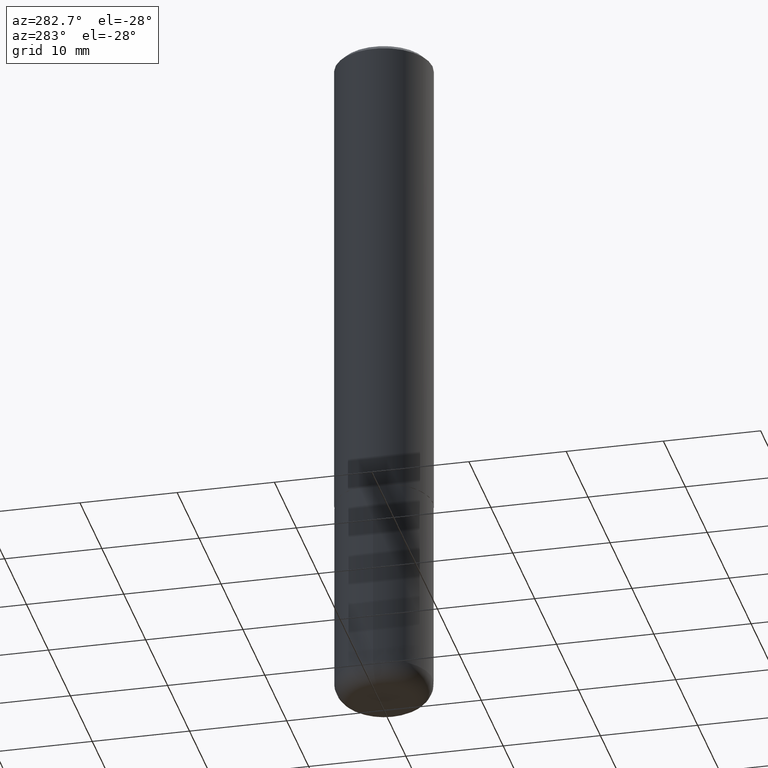
[diagram: clean part render]
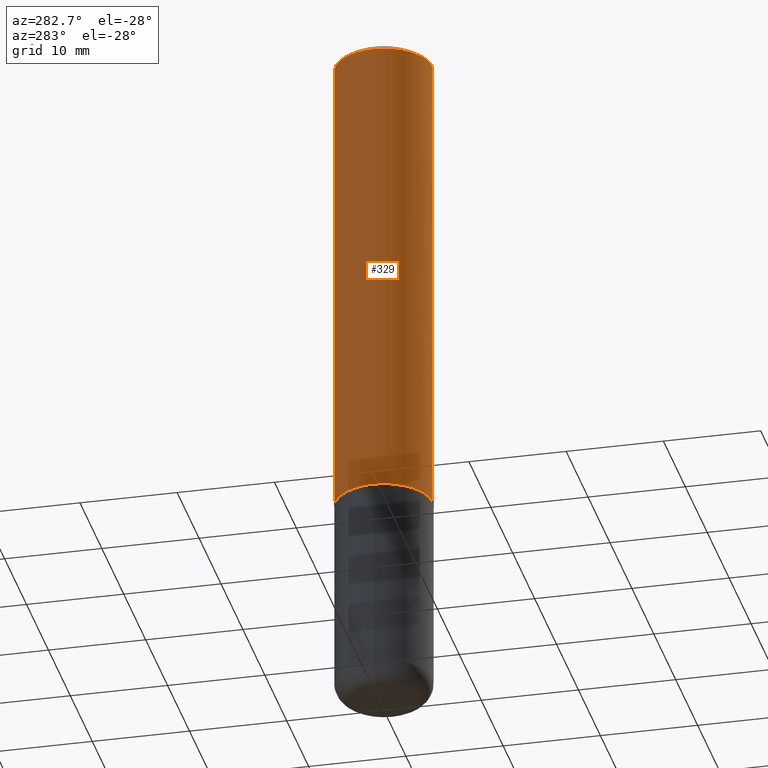
[diagram: same view with one face highlighted and labeled with its STEP entity id]
A machine part, auxiliary view. The second image highlights one B-rep face of the part: STEP entity #329.
In plain terms, the highlighted cylindrical surface (partial cylindrical patch) has radius 5 mm, axis along (-0, 0, 1).
Its self-contained STEP definition (entity closure, byte-faithful):
#24 = EDGE_CURVE ( 'NONE', #341, #277, #289, .T. ) ;
#28 = CYLINDRICAL_SURFACE ( 'NONE', #30, 0.1968500000000001082 ) ;
#30 = AXIS2_PLACEMENT_3D ( 'NONE', #38, #237, #67 ) ;
#32 = CARTESIAN_POINT ( 'NONE',  ( 1.398703375343782834E-15, 0.1968499999999934191, -1.967500000000000471 ) ) ;
#38 = CARTESIAN_POINT ( 'NONE',  ( 0.000000000000000000, 0.000000000000000000, 0.000000000000000000 ) ) ;
#67 = DIRECTION ( 'NONE',  ( -6.982962677686265922E-15, -1.000000000000000000, 3.490819278536432204E-15 ) ) ;
#74 = CIRCLE ( 'NONE', #384, 0.1968500000000000250 ) ;
#119 = AXIS2_PLACEMENT_3D ( 'NONE', #197, #320, #226 ) ;
#129 = CARTESIAN_POINT ( 'NONE',  ( -1.374596203102495065E-15, -0.1968500000000071026, -1.967499999999998916 ) ) ;
#133 = DIRECTION ( 'NONE',  ( -6.982962677686265133E-15, -1.000000000000000000, 3.491137977679279424E-15 ) ) ;
#135 = VERTEX_POINT ( 'NONE', #373 ) ;
#138 = VECTOR ( 'NONE', #257, 39.37007874015748143 ) ;
#140 = ORIENTED_EDGE ( 'NONE', *, *, #337, .T. ) ;
#150 = ORIENTED_EDGE ( 'NONE', *, *, #367, .F. ) ;
#156 = ORIENTED_EDGE ( 'NONE', *, *, #24, .T. ) ;
#161 = CARTESIAN_POINT ( 'NONE',  ( -1.374596203102542200E-15, -0.1968500000000001082, 6.871677749798970513E-16 ) ) ;
#180 = EDGE_CURVE ( 'NONE', #362, #135, #74, .T. ) ;
#188 = CARTESIAN_POINT ( 'NONE',  ( 4.891862240852715644E-31, -6.981638557072878903E-17, -0.02000000000000004205 ) ) ;
#195 = LINE ( 'NONE', #161, #281 ) ;
#197 = CARTESIAN_POINT ( 'NONE',  ( 4.812369479438847265E-29, -6.868186930520428742E-15, -1.967499999999999805 ) ) ;
#226 = DIRECTION ( 'NONE',  ( -6.982962677686265922E-15, -1.000000000000000000, 4.163344669033670112E-15 ) ) ;
#237 = DIRECTION ( 'NONE',  ( -2.445931120426352427E-29, 3.490819278536432204E-15, 1.000000000000000000 ) ) ;
#257 = DIRECTION ( 'NONE',  ( -2.445931120426352427E-29, 3.490819278536432204E-15, 1.000000000000000000 ) ) ;
#258 = CARTESIAN_POINT ( 'NONE',  ( 1.374596203102542003E-15, 0.1968499999999999417, -0.02000000000000072900 ) ) ;
#277 = VERTEX_POINT ( 'NONE', #129 ) ;
#280 = EDGE_LOOP ( 'NONE', ( #150, #156, #140, #387 ) ) ;
#281 = VECTOR ( 'NONE', #389, 39.37007874015748143 ) ;
#289 = CIRCLE ( 'NONE', #119, 0.1968500000000002470 ) ;
#320 = DIRECTION ( 'NONE',  ( -2.445931120426352427E-29, 3.490819278536432204E-15, 1.000000000000000000 ) ) ;
#323 = FACE_OUTER_BOUND ( 'NONE', #280, .T. ) ;
#329 = ADVANCED_FACE ( 'NONE', ( #323 ), #28, .T. ) ;
#337 = EDGE_CURVE ( 'NONE', #277, #135, #195, .T. ) ;
#341 = VERTEX_POINT ( 'NONE', #32 ) ;
#362 = VERTEX_POINT ( 'NONE', #258 ) ;
#367 = EDGE_CURVE ( 'NONE', #341, #362, #383, .T. ) ;
#373 = CARTESIAN_POINT ( 'NONE',  ( -1.350489030861325429E-15, -0.1968500000000000805, -0.01999999999999935510 ) ) ;
#378 = DIRECTION ( 'NONE',  ( -2.445931120426352427E-29, 3.490819278536432204E-15, 1.000000000000000000 ) ) ;
#383 = LINE ( 'NONE', #412, #138 ) ;
#384 = AXIS2_PLACEMENT_3D ( 'NONE', #188, #378, #133 ) ;
#387 = ORIENTED_EDGE ( 'NONE', *, *, #180, .F. ) ;
#389 = DIRECTION ( 'NONE',  ( -2.445931120426352427E-29, 3.490819278536432204E-15, 1.000000000000000000 ) ) ;
#412 = CARTESIAN_POINT ( 'NONE',  ( 1.398703375343757788E-15, 0.1968500000000001082, -6.871677749798970513E-16 ) ) ;